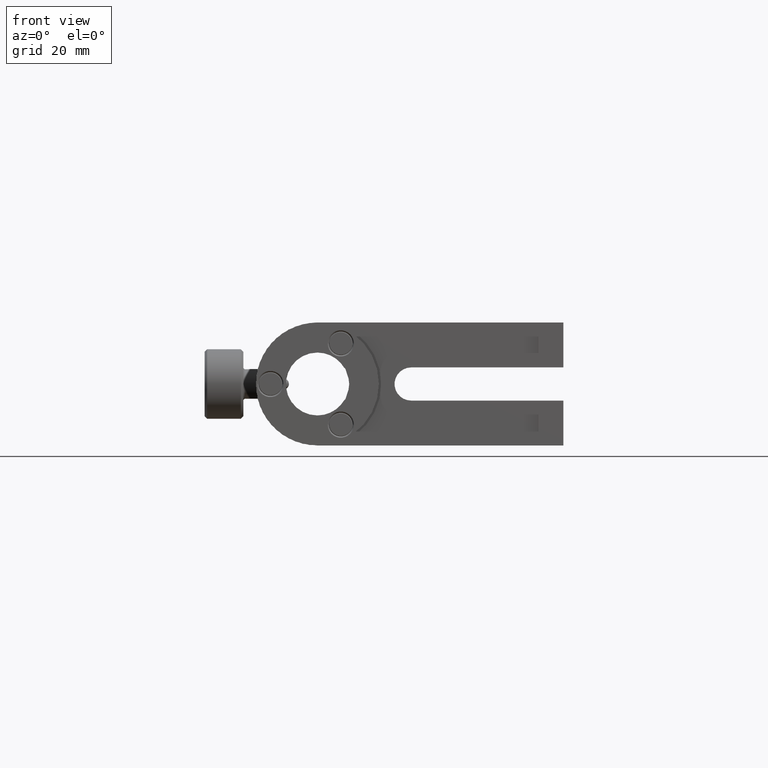
[diagram: clean part render]
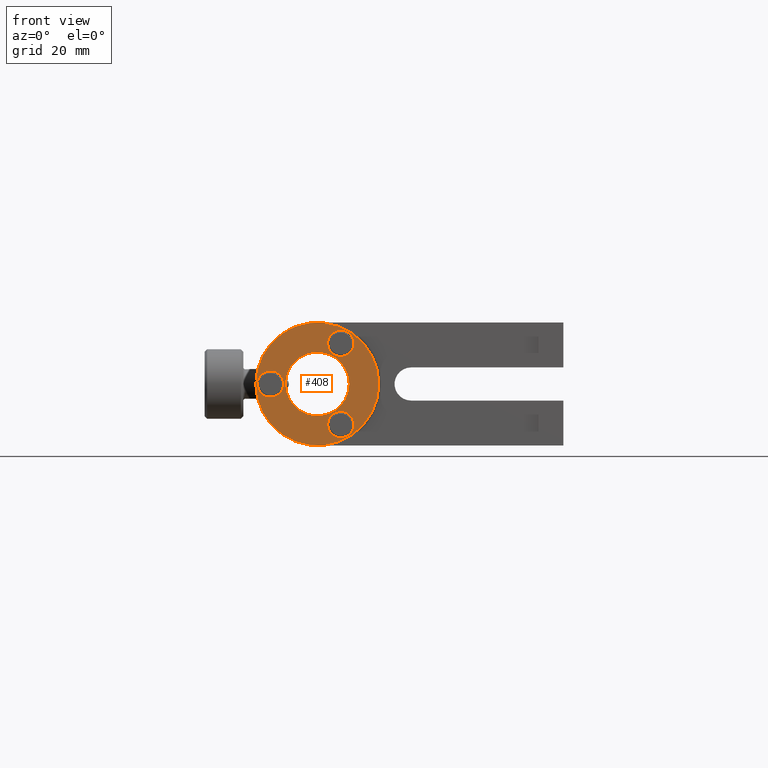
[diagram: same view with one face highlighted and labeled with its STEP entity id]
A machine part, front view. The second image highlights one B-rep face of the part: STEP entity #408.
In plain terms, the highlighted planar face has unit normal (0, 1, 0).
Its self-contained STEP definition (entity closure, byte-faithful):
#33 = AXIS2_PLACEMENT_3D ( 'NONE', #1243, #351, #947 ) ;
#165 = AXIS2_PLACEMENT_3D ( 'NONE', #221, #232, #1398 ) ;
#172 = DIRECTION ( 'NONE',  ( -1.000000000000000000, 0.0000000000000000000, -3.552366734105304300E-014 ) ) ;
#174 = CIRCLE ( 'NONE', #165, 2.666999999999999400 ) ;
#197 = FACE_BOUND ( 'NONE', #1290, .T. ) ;
#221 = CARTESIAN_POINT ( 'NONE',  ( 8.885566643891005300, -5.173065212235105300, 8.248891971047143600 ) ) ;
#232 = DIRECTION ( 'NONE',  ( 0.0000000000000000000, 1.000000000000000000, 0.0000000000000000000 ) ) ;
#287 = CIRCLE ( 'NONE', #3018, 2.666999999999999400 ) ;
#288 = VERTEX_POINT ( 'NONE', #3577 ) ;
#297 = CIRCLE ( 'NONE', #1349, 12.49680000000000200 ) ;
#302 = VERTEX_POINT ( 'NONE', #3301 ) ;
#314 = CARTESIAN_POINT ( 'NONE',  ( 8.885566643891714000, -5.173065212235105300, -8.248891971046440100 ) ) ;
#331 = EDGE_LOOP ( 'NONE', ( #1759, #3283 ) ) ;
#351 = DIRECTION ( 'NONE',  ( 0.0000000000000000000, 1.000000000000000000, 0.0000000000000000000 ) ) ;
#368 = AXIS2_PLACEMENT_3D ( 'NONE', #1171, #3515, #2619 ) ;
#381 = VERTEX_POINT ( 'NONE', #1578 ) ;
#408 = ADVANCED_FACE ( 'NONE', ( #1750, #197, #3182, #1013, #881 ), #650, .F. ) ;
#421 = AXIS2_PLACEMENT_3D ( 'NONE', #1756, #2054, #596 ) ;
#482 = CIRCLE ( 'NONE', #892, 2.667000000000001100 ) ;
#500 = AXIS2_PLACEMENT_3D ( 'NONE', #314, #2640, #608 ) ;
#564 = CIRCLE ( 'NONE', #500, 2.666999999999999400 ) ;
#596 = DIRECTION ( 'NONE',  ( -1.000000000000000000, 0.0000000000000000000, -3.552366734105305600E-014 ) ) ;
#597 = AXIS2_PLACEMENT_3D ( 'NONE', #795, #3508, #1261 ) ;
#604 = EDGE_CURVE ( 'NONE', #3033, #288, #3594, .T. ) ;
#608 = DIRECTION ( 'NONE',  ( -1.000000000000000000, 0.0000000000000000000, -3.577419991703202400E-014 ) ) ;
#650 = PLANE ( 'NONE',  #33 ) ;
#795 = CARTESIAN_POINT ( 'NONE',  ( 4.123066643891380800, -5.173065212235105300, 1.457167719820518700E-013 ) ) ;
#880 = ORIENTED_EDGE ( 'NONE', *, *, #1998, .T. ) ;
#881 = FACE_BOUND ( 'NONE', #331, .T. ) ;
#892 = AXIS2_PLACEMENT_3D ( 'NONE', #2246, #1361, #2271 ) ;
#911 = CARTESIAN_POINT ( 'NONE',  ( 16.61986664389138100, -5.173065212235105300, 5.911793546216819800E-013 ) ) ;
#947 = DIRECTION ( 'NONE',  ( -1.000000000000000000, 0.0000000000000000000, -3.552366734105304900E-014 ) ) ;
#952 = VERTEX_POINT ( 'NONE', #3478 ) ;
#981 = EDGE_CURVE ( 'NONE', #288, #3033, #1977, .T. ) ;
#1013 = FACE_OUTER_BOUND ( 'NONE', #1109, .T. ) ;
#1063 = EDGE_CURVE ( 'NONE', #381, #2074, #3107, .T. ) ;
#1109 = EDGE_LOOP ( 'NONE', ( #2911, #3529 ) ) ;
#1171 = CARTESIAN_POINT ( 'NONE',  ( 8.885566643891005300, -5.173065212235105300, 8.248891971047143600 ) ) ;
#1173 = DIRECTION ( 'NONE',  ( -1.000000000000000000, 0.0000000000000000000, -3.552366734105304300E-014 ) ) ;
#1174 = VERTEX_POINT ( 'NONE', #2124 ) ;
#1197 = ORIENTED_EDGE ( 'NONE', *, *, #1063, .T. ) ;
#1243 = CARTESIAN_POINT ( 'NONE',  ( 27.25954881087196900, -5.173065212235105300, 9.676094679240765700E-013 ) ) ;
#1261 = DIRECTION ( 'NONE',  ( -1.000000000000000000, 0.0000000000000000000, -3.552366734105304900E-014 ) ) ;
#1269 = DIRECTION ( 'NONE',  ( -1.000000000000000000, 0.0000000000000000000, -3.577419991703202400E-014 ) ) ;
#1276 = CARTESIAN_POINT ( 'NONE',  ( 8.885566643891714000, -5.173065212235105300, -8.248891971046440100 ) ) ;
#1290 = EDGE_LOOP ( 'NONE', ( #2698, #1197 ) ) ;
#1349 = AXIS2_PLACEMENT_3D ( 'NONE', #3403, #1624, #172 ) ;
#1361 = DIRECTION ( 'NONE',  ( 0.0000000000000000000, 1.000000000000000000, 0.0000000000000000000 ) ) ;
#1398 = DIRECTION ( 'NONE',  ( -1.000000000000000000, 0.0000000000000000000, -3.577419991703202400E-014 ) ) ;
#1422 = DIRECTION ( 'NONE',  ( 0.0000000000000000000, 1.000000000000000000, 0.0000000000000000000 ) ) ;
#1459 = DIRECTION ( 'NONE',  ( -1.000000000000000000, 0.0000000000000000000, -3.552366734105304900E-014 ) ) ;
#1477 = EDGE_CURVE ( 'NONE', #1631, #1174, #287, .T. ) ;
#1552 = AXIS2_PLACEMENT_3D ( 'NONE', #2649, #1422, #1459 ) ;
#1578 = CARTESIAN_POINT ( 'NONE',  ( 6.218566643891006300, -5.173065212235105300, 8.248891971047049400 ) ) ;
#1588 = CARTESIAN_POINT ( 'NONE',  ( 10.60006664389137900, -5.173065212235105300, 3.765967690818601100E-013 ) ) ;
#1590 = CARTESIAN_POINT ( 'NONE',  ( 6.218566643891713300, -5.173065212235105300, -8.248891971046534300 ) ) ;
#1624 = DIRECTION ( 'NONE',  ( 0.0000000000000000000, 1.000000000000000000, 0.0000000000000000000 ) ) ;
#1631 = VERTEX_POINT ( 'NONE', #1590 ) ;
#1750 = FACE_BOUND ( 'NONE', #3416, .T. ) ;
#1756 = CARTESIAN_POINT ( 'NONE',  ( -5.401933356108623100, -5.173065212235105300, -1.926461594414785800E-013 ) ) ;
#1759 = ORIENTED_EDGE ( 'NONE', *, *, #981, .T. ) ;
#1781 = DIRECTION ( 'NONE',  ( 0.0000000000000000000, 1.000000000000000000, 0.0000000000000000000 ) ) ;
#1918 = DIRECTION ( 'NONE',  ( 0.0000000000000000000, 1.000000000000000000, 0.0000000000000000000 ) ) ;
#1935 = CIRCLE ( 'NONE', #421, 2.667000000000001100 ) ;
#1977 = CIRCLE ( 'NONE', #1552, 6.477000000000000300 ) ;
#1998 = EDGE_CURVE ( 'NONE', #1174, #1631, #564, .T. ) ;
#2012 = EDGE_CURVE ( 'NONE', #302, #2265, #1935, .T. ) ;
#2054 = DIRECTION ( 'NONE',  ( 0.0000000000000000000, 1.000000000000000000, 0.0000000000000000000 ) ) ;
#2074 = VERTEX_POINT ( 'NONE', #3524 ) ;
#2124 = CARTESIAN_POINT ( 'NONE',  ( 11.55256664389171400, -5.173065212235105300, -8.248891971046347700 ) ) ;
#2246 = CARTESIAN_POINT ( 'NONE',  ( -5.401933356108623100, -5.173065212235105300, -1.926461594414785800E-013 ) ) ;
#2265 = VERTEX_POINT ( 'NONE', #3065 ) ;
#2271 = DIRECTION ( 'NONE',  ( -1.000000000000000000, 0.0000000000000000000, -3.552366734105305600E-014 ) ) ;
#2325 = EDGE_CURVE ( 'NONE', #952, #2742, #297, .T. ) ;
#2490 = EDGE_CURVE ( 'NONE', #2265, #302, #482, .T. ) ;
#2599 = EDGE_CURVE ( 'NONE', #2742, #952, #3334, .T. ) ;
#2619 = DIRECTION ( 'NONE',  ( -1.000000000000000000, 0.0000000000000000000, -3.577419991703202400E-014 ) ) ;
#2640 = DIRECTION ( 'NONE',  ( 0.0000000000000000000, 1.000000000000000000, 0.0000000000000000000 ) ) ;
#2649 = CARTESIAN_POINT ( 'NONE',  ( 4.123066643891380800, -5.173065212235105300, 1.457167719820518700E-013 ) ) ;
#2698 = ORIENTED_EDGE ( 'NONE', *, *, #3274, .T. ) ;
#2742 = VERTEX_POINT ( 'NONE', #911 ) ;
#2911 = ORIENTED_EDGE ( 'NONE', *, *, #2325, .F. ) ;
#2947 = CARTESIAN_POINT ( 'NONE',  ( 4.123066643891380800, -5.173065212235105300, 1.457167719820518700E-013 ) ) ;
#2951 = ORIENTED_EDGE ( 'NONE', *, *, #1477, .T. ) ;
#3018 = AXIS2_PLACEMENT_3D ( 'NONE', #1276, #1918, #1269 ) ;
#3033 = VERTEX_POINT ( 'NONE', #1588 ) ;
#3043 = AXIS2_PLACEMENT_3D ( 'NONE', #2947, #1781, #1173 ) ;
#3051 = ORIENTED_EDGE ( 'NONE', *, *, #2012, .T. ) ;
#3065 = CARTESIAN_POINT ( 'NONE',  ( -8.068933356108624700, -5.173065212235105300, -2.870611669387344800E-013 ) ) ;
#3107 = CIRCLE ( 'NONE', #368, 2.666999999999999400 ) ;
#3120 = ORIENTED_EDGE ( 'NONE', *, *, #2490, .T. ) ;
#3182 = FACE_BOUND ( 'NONE', #3255, .T. ) ;
#3255 = EDGE_LOOP ( 'NONE', ( #3051, #3120 ) ) ;
#3274 = EDGE_CURVE ( 'NONE', #2074, #381, #174, .T. ) ;
#3283 = ORIENTED_EDGE ( 'NONE', *, *, #604, .T. ) ;
#3301 = CARTESIAN_POINT ( 'NONE',  ( -2.734933356108621500, -5.173065212235105300, -9.790453864289004100E-014 ) ) ;
#3334 = CIRCLE ( 'NONE', #3043, 12.49680000000000200 ) ;
#3403 = CARTESIAN_POINT ( 'NONE',  ( 4.123066643891380800, -5.173065212235105300, 1.457167719820518700E-013 ) ) ;
#3416 = EDGE_LOOP ( 'NONE', ( #880, #2951 ) ) ;
#3478 = CARTESIAN_POINT ( 'NONE',  ( -8.373733356108621400, -5.173065212235105300, -2.982153940456199100E-013 ) ) ;
#3508 = DIRECTION ( 'NONE',  ( 0.0000000000000000000, 1.000000000000000000, 0.0000000000000000000 ) ) ;
#3515 = DIRECTION ( 'NONE',  ( 0.0000000000000000000, 1.000000000000000000, 0.0000000000000000000 ) ) ;
#3524 = CARTESIAN_POINT ( 'NONE',  ( 11.55256664389100500, -5.173065212235105300, 8.248891971047237700 ) ) ;
#3529 = ORIENTED_EDGE ( 'NONE', *, *, #2599, .F. ) ;
#3577 = CARTESIAN_POINT ( 'NONE',  ( -2.353933356108619100, -5.173065212235105300, -8.437002138594873400E-014 ) ) ;
#3594 = CIRCLE ( 'NONE', #597, 6.477000000000000300 ) ;